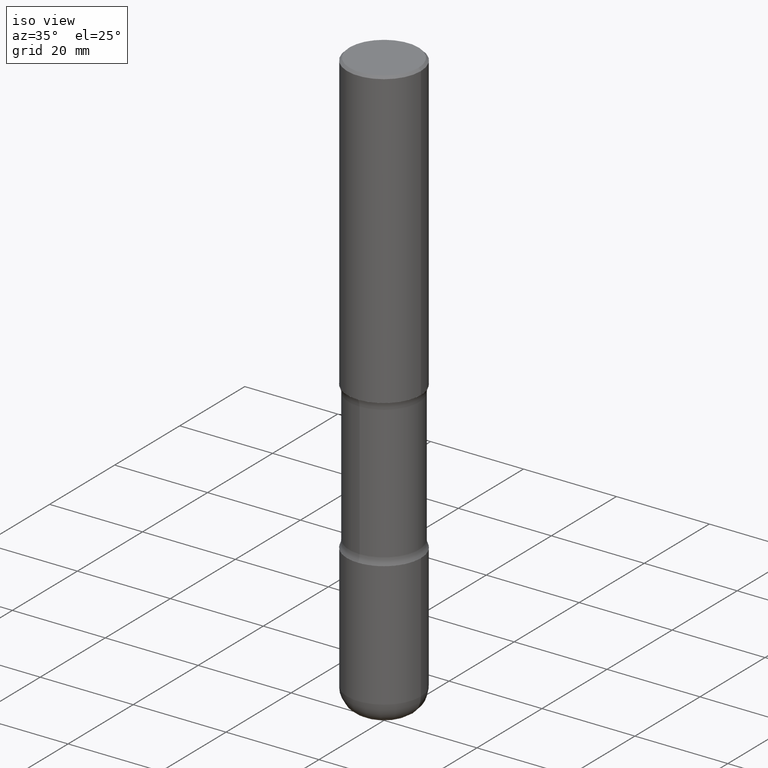
[diagram: clean part render]
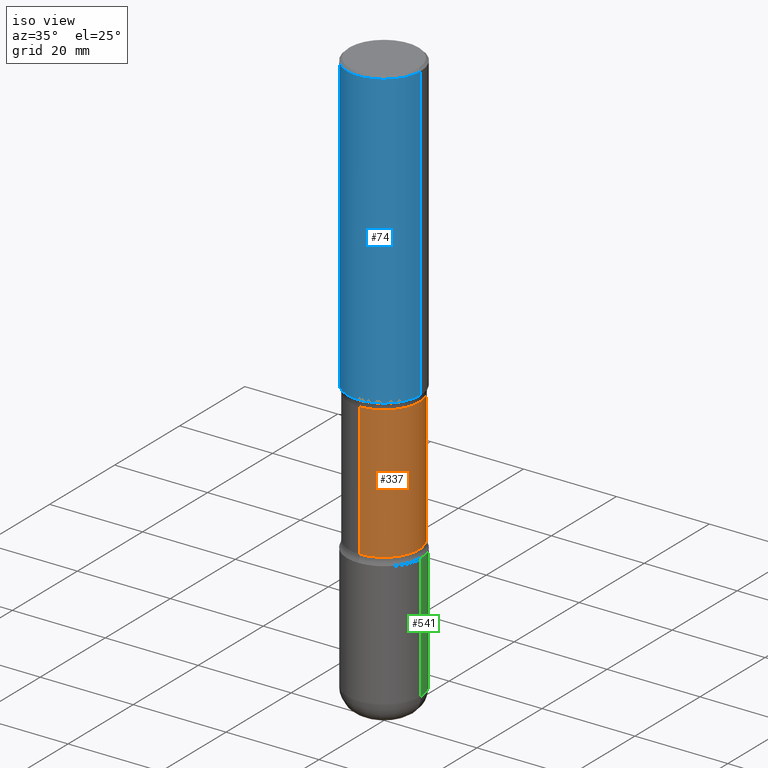
[diagram: same view with three faces highlighted in distinct colors, each labeled with its STEP entity id]
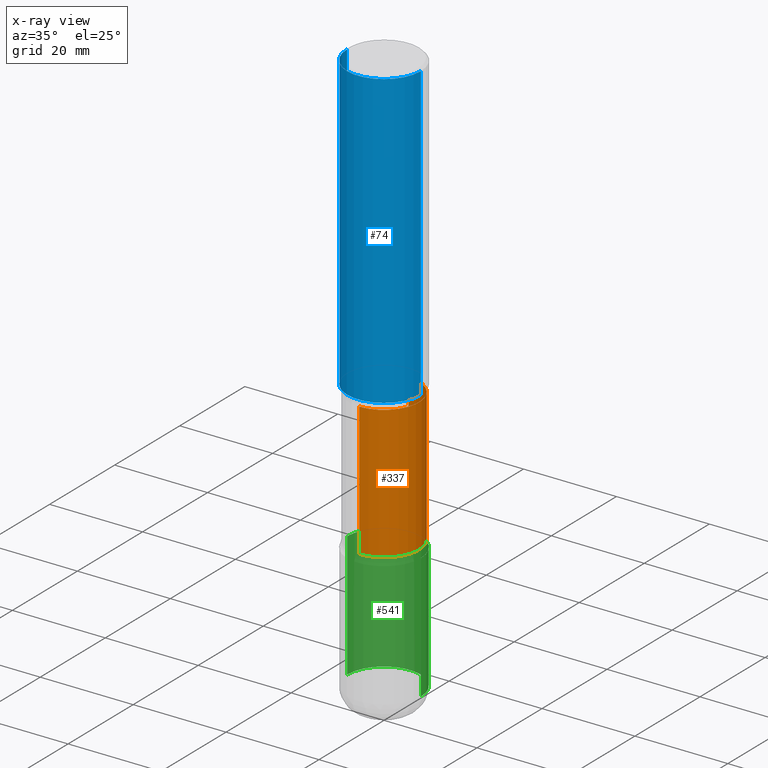
[diagram: x-ray of the same camera — body ghosted, the three highlighted faces saturated]
A machine part, iso view with three faces highlighted in distinct colors.
The next image is the same camera in x-ray (body ghosted, the three faces saturated) — at least one of them is partly hidden behind the body in this view.
Their STEP definitions:

[orange] entity #337 — the highlighted cylindrical surface (partial cylindrical patch) has radius 7.5406 mm, axis along (0, -0, -1).
#33 = EDGE_CURVE ( 'NONE', #494, #222, #183, .T. ) ;
#34 = EDGE_LOOP ( 'NONE', ( #223, #415, #195, #58 ) ) ;
#35 = DIRECTION ( 'NONE',  ( 2.521457479434076939E-29, -3.382661233743975076E-15, -1.000000000000000000 ) ) ;
#46 = CARTESIAN_POINT ( 'NONE',  ( 2.073067044938200360E-15, 0.2968749999999871214, -3.689484635215509289 ) ) ;
#47 = DIRECTION ( 'NONE',  ( 6.982962677686266711E-15, 1.000000000000000000, -3.680805717779217644E-15 ) ) ;
#58 = ORIENTED_EDGE ( 'NONE', *, *, #426, .F. ) ;
#98 = VECTOR ( 'NONE', #370, 39.37007874015748143 ) ;
#107 = DIRECTION ( 'NONE',  ( 2.521457479434076939E-29, -3.382661233743975076E-15, -1.000000000000000000 ) ) ;
#129 = DIRECTION ( 'NONE',  ( 6.982962677686265133E-15, 1.000000000000000000, -3.680805717779217644E-15 ) ) ;
#181 = FACE_OUTER_BOUND ( 'NONE', #34, .T. ) ;
#183 = LINE ( 'NONE', #187, #98 ) ;
#187 = CARTESIAN_POINT ( 'NONE',  ( -2.036710343088299976E-15, -0.2968750000000173195, -4.999999999999999112 ) ) ;
#195 = ORIENTED_EDGE ( 'NONE', *, *, #214, .F. ) ;
#214 = EDGE_CURVE ( 'NONE', #264, #222, #435, .T. ) ;
#216 = CARTESIAN_POINT ( 'NONE',  ( 9.017921104037724021E-29, -1.288835204215942242E-14, -3.689484635215508401 ) ) ;
#219 = CARTESIAN_POINT ( 'NONE',  ( -2.090307983695953569E-15, -0.2968750000000091038, -2.560515364784489822 ) ) ;
#222 = VERTEX_POINT ( 'NONE', #397 ) ;
#223 = ORIENTED_EDGE ( 'NONE', *, *, #363, .T. ) ;
#228 = VECTOR ( 'NONE', #453, 39.37007874015748143 ) ;
#237 = VERTEX_POINT ( 'NONE', #252 ) ;
#252 = CARTESIAN_POINT ( 'NONE',  ( 2.073067044938171961E-15, 0.2968749999999909517, -2.560515364784492043 ) ) ;
#259 = AXIS2_PLACEMENT_3D ( 'NONE', #216, #35, #129 ) ;
#264 = VERTEX_POINT ( 'NONE', #46 ) ;
#333 = AXIS2_PLACEMENT_3D ( 'NONE', #531, #107, #47 ) ;
#337 = ADVANCED_FACE ( 'NONE', ( #181 ), #500, .T. ) ;
#363 = EDGE_CURVE ( 'NONE', #237, #494, #380, .T. ) ;
#370 = DIRECTION ( 'NONE',  ( 2.521457479434076939E-29, -3.382661233743974681E-15, -1.000000000000000000 ) ) ;
#374 = DIRECTION ( 'NONE',  ( 2.521457479434076939E-29, -3.382661233743975076E-15, -1.000000000000000000 ) ) ;
#380 = CIRCLE ( 'NONE', #507, 0.2968750000000000000 ) ;
#397 = CARTESIAN_POINT ( 'NONE',  ( -2.090307983695922804E-15, -0.2968750000000128786, -3.689484635215507069 ) ) ;
#415 = ORIENTED_EDGE ( 'NONE', *, *, #33, .T. ) ;
#426 = EDGE_CURVE ( 'NONE', #237, #264, #532, .T. ) ;
#435 = CIRCLE ( 'NONE', #259, 0.2968750000000000000 ) ;
#453 = DIRECTION ( 'NONE',  ( 2.521457479434076939E-29, -3.382661233743974681E-15, -1.000000000000000000 ) ) ;
#466 = CARTESIAN_POINT ( 'NONE',  ( 2.073067044938233492E-15, 0.2968749999999827360, -5.000000000000000888 ) ) ;
#494 = VERTEX_POINT ( 'NONE', #219 ) ;
#500 = CYLINDRICAL_SURFACE ( 'NONE', #333, 0.2968750000000000000 ) ;
#507 = AXIS2_PLACEMENT_3D ( 'NONE', #523, #374, #528 ) ;
#523 = CARTESIAN_POINT ( 'NONE',  ( 6.171273093058203090E-29, -9.069431456984199816E-15, -2.560515364784490711 ) ) ;
#528 = DIRECTION ( 'NONE',  ( 6.982962677686266711E-15, 1.000000000000000000, -3.680805717779217644E-15 ) ) ;
#531 = CARTESIAN_POINT ( 'NONE',  ( 1.232232987248685960E-28, -1.732138156284176685E-14, -5.000000000000000000 ) ) ;
#532 = LINE ( 'NONE', #466, #228 ) ;

[blue] entity #74 — the highlighted cylindrical surface (partial cylindrical patch) has radius 7.9375 mm, axis along (-0, 0, 1).
#23 = CARTESIAN_POINT ( 'NONE',  ( -0.3125000000000000000, 2.220446049250313081E-15, -1.537167215704658232E-29 ) ) ;
#24 = ORIENTED_EDGE ( 'NONE', *, *, #232, .F. ) ;
#40 = AXIS2_PLACEMENT_3D ( 'NONE', #527, #324, #103 ) ;
#66 = CARTESIAN_POINT ( 'NONE',  ( 6.113672015462840371E-29, -8.728703347107863365E-15, -2.499999999999999556 ) ) ;
#74 = ADVANCED_FACE ( 'NONE', ( #233 ), #327, .T. ) ;
#76 = DIRECTION ( 'NONE',  ( -2.445468806185136597E-29, 3.491481338843145583E-15, 1.000000000000000000 ) ) ;
#83 = CARTESIAN_POINT ( 'NONE',  ( -0.3124999999999998890, 2.112346210000094260E-15, -0.02000000000000006981 ) ) ;
#103 = DIRECTION ( 'NONE',  ( 1.000000000000000000, -6.982962677686266711E-15, 4.876176775795936353E-29 ) ) ;
#113 = VECTOR ( 'NONE', #383, 39.37007874015748143 ) ;
#118 = EDGE_CURVE ( 'NONE', #423, #177, #489, .T. ) ;
#134 = EDGE_CURVE ( 'NONE', #177, #390, #203, .T. ) ;
#177 = VERTEX_POINT ( 'NONE', #478 ) ;
#200 = ORIENTED_EDGE ( 'NONE', *, *, #118, .T. ) ;
#203 = LINE ( 'NONE', #385, #113 ) ;
#218 = VERTEX_POINT ( 'NONE', #83 ) ;
#232 = EDGE_CURVE ( 'NONE', #218, #390, #554, .T. ) ;
#233 = FACE_OUTER_BOUND ( 'NONE', #329, .T. ) ;
#240 = ORIENTED_EDGE ( 'NONE', *, *, #134, .T. ) ;
#248 = CARTESIAN_POINT ( 'NONE',  ( 4.890937612370289799E-31, -6.982962677686315028E-17, -0.02000000000000006981 ) ) ;
#261 = DIRECTION ( 'NONE',  ( -2.445468806185136597E-29, 3.491481338843145583E-15, 1.000000000000000000 ) ) ;
#324 = DIRECTION ( 'NONE',  ( -2.445468806185136597E-29, 3.491481338843145583E-15, 1.000000000000000000 ) ) ;
#327 = CYLINDRICAL_SURFACE ( 'NONE', #40, 0.3125000000000000000 ) ;
#329 = EDGE_LOOP ( 'NONE', ( #560, #200, #240, #24 ) ) ;
#331 = CARTESIAN_POINT ( 'NONE',  ( 0.3124999999999998890, -2.213735251080466123E-15, -0.02000000000000006981 ) ) ;
#368 = VECTOR ( 'NONE', #544, 39.37007874015748143 ) ;
#383 = DIRECTION ( 'NONE',  ( -2.445468806185136877E-29, 3.491481338843145188E-15, 1.000000000000000000 ) ) ;
#385 = CARTESIAN_POINT ( 'NONE',  ( 0.3125000000000000000, -2.182175836776958347E-15, 1.523805242436230075E-29 ) ) ;
#390 = VERTEX_POINT ( 'NONE', #331 ) ;
#423 = VERTEX_POINT ( 'NONE', #493 ) ;
#425 = DIRECTION ( 'NONE',  ( 1.000000000000000000, -6.982962677686266711E-15, 0.000000000000000000 ) ) ;
#447 = AXIS2_PLACEMENT_3D ( 'NONE', #66, #76, #425 ) ;
#448 = AXIS2_PLACEMENT_3D ( 'NONE', #248, #261, #474 ) ;
#474 = DIRECTION ( 'NONE',  ( 1.000000000000000000, -6.982962677686266711E-15, 0.000000000000000000 ) ) ;
#478 = CARTESIAN_POINT ( 'NONE',  ( 0.3125000000000002220, -1.091087918388482329E-14, -2.499999999999999556 ) ) ;
#489 = CIRCLE ( 'NONE', #447, 0.3125000000000002220 ) ;
#493 = CARTESIAN_POINT ( 'NONE',  ( -0.3125000000000002220, -2.178820437692046306E-15, -2.499999999999999556 ) ) ;
#501 = LINE ( 'NONE', #23, #368 ) ;
#527 = CARTESIAN_POINT ( 'NONE',  ( 0.000000000000000000, 0.000000000000000000, 0.000000000000000000 ) ) ;
#529 = EDGE_CURVE ( 'NONE', #423, #218, #501, .T. ) ;
#544 = DIRECTION ( 'NONE',  ( -2.445468806185136877E-29, 3.491481338843145188E-15, 1.000000000000000000 ) ) ;
#554 = CIRCLE ( 'NONE', #448, 0.3124999999999998890 ) ;
#560 = ORIENTED_EDGE ( 'NONE', *, *, #529, .F. ) ;

[green] entity #541 — the highlighted cylindrical surface (partial cylindrical patch) has radius 7.9375 mm, axis along (-0, 0, 1).
#13 = CIRCLE ( 'NONE', #206, 0.3125000000000002220 ) ;
#38 = DIRECTION ( 'NONE',  ( -2.445468806185136877E-29, 3.491481338843145188E-15, 1.000000000000000000 ) ) ;
#53 = AXIS2_PLACEMENT_3D ( 'NONE', #295, #194, #469 ) ;
#90 = VERTEX_POINT ( 'NONE', #151 ) ;
#91 = EDGE_CURVE ( 'NONE', #388, #446, #292, .T. ) ;
#96 = CARTESIAN_POINT ( 'NONE',  ( 0.3125000000000001665, -1.897620107661249005E-14, -4.810000000000000497 ) ) ;
#108 = ORIENTED_EDGE ( 'NONE', *, *, #382, .T. ) ;
#111 = CARTESIAN_POINT ( 'NONE',  ( 9.170508023194261117E-29, -1.309305502066179584E-14, -3.749999999999999556 ) ) ;
#114 = VECTOR ( 'NONE', #38, 39.37007874015748143 ) ;
#139 = DIRECTION ( 'NONE',  ( 1.000000000000000000, -6.982962677686264344E-15, 0.000000000000000000 ) ) ;
#151 = CARTESIAN_POINT ( 'NONE',  ( -0.3125000000000001665, -1.272309408099834754E-14, -3.749999999999999556 ) ) ;
#153 = EDGE_LOOP ( 'NONE', ( #108, #178, #461, #283 ) ) ;
#178 = ORIENTED_EDGE ( 'NONE', *, *, #196, .T. ) ;
#194 = DIRECTION ( 'NONE',  ( -2.445468806185136597E-29, 3.491481338843145583E-15, 1.000000000000000000 ) ) ;
#196 = EDGE_CURVE ( 'NONE', #518, #90, #393, .T. ) ;
#197 = FACE_OUTER_BOUND ( 'NONE', #153, .T. ) ;
#206 = AXIS2_PLACEMENT_3D ( 'NONE', #520, #378, #139 ) ;
#241 = CYLINDRICAL_SURFACE ( 'NONE', #53, 0.3125000000000001665 ) ;
#247 = DIRECTION ( 'NONE',  ( -2.445468806185136597E-29, 3.491481338843145583E-15, 1.000000000000000000 ) ) ;
#283 = ORIENTED_EDGE ( 'NONE', *, *, #91, .F. ) ;
#292 = LINE ( 'NONE', #349, #371 ) ;
#295 = CARTESIAN_POINT ( 'NONE',  ( 0.000000000000000000, 0.000000000000000000, 0.000000000000000000 ) ) ;
#304 = CIRCLE ( 'NONE', #314, 0.3125000000000001665 ) ;
#314 = AXIS2_PLACEMENT_3D ( 'NONE', #111, #247, #343 ) ;
#340 = CARTESIAN_POINT ( 'NONE',  ( -0.3125000000000001665, -1.457357919058521389E-14, -4.810000000000000497 ) ) ;
#343 = DIRECTION ( 'NONE',  ( 1.000000000000000000, -6.982962677686265133E-15, 0.000000000000000000 ) ) ;
#349 = CARTESIAN_POINT ( 'NONE',  ( 0.3125000000000001665, -2.182175836776959530E-15, 1.523805242436230636E-29 ) ) ;
#371 = VECTOR ( 'NONE', #411, 39.37007874015748143 ) ;
#378 = DIRECTION ( 'NONE',  ( -2.445468806185136597E-29, 3.491481338843145583E-15, 1.000000000000000000 ) ) ;
#382 = EDGE_CURVE ( 'NONE', #388, #518, #13, .T. ) ;
#388 = VERTEX_POINT ( 'NONE', #96 ) ;
#393 = LINE ( 'NONE', #444, #114 ) ;
#411 = DIRECTION ( 'NONE',  ( -2.445468806185136877E-29, 3.491481338843145188E-15, 1.000000000000000000 ) ) ;
#419 = CARTESIAN_POINT ( 'NONE',  ( 0.3125000000000001665, -1.527523085743875418E-14, -3.749999999999999556 ) ) ;
#444 = CARTESIAN_POINT ( 'NONE',  ( -0.3125000000000001665, 2.220446049250314264E-15, -1.537167215704658792E-29 ) ) ;
#446 = VERTEX_POINT ( 'NONE', #419 ) ;
#461 = ORIENTED_EDGE ( 'NONE', *, *, #535, .F. ) ;
#469 = DIRECTION ( 'NONE',  ( 1.000000000000000000, -6.982962677686266711E-15, 4.876176775795935232E-29 ) ) ;
#518 = VERTEX_POINT ( 'NONE', #340 ) ;
#520 = CARTESIAN_POINT ( 'NONE',  ( 1.176270495775050811E-28, -1.679402523983553013E-14, -4.810000000000000497 ) ) ;
#535 = EDGE_CURVE ( 'NONE', #446, #90, #304, .T. ) ;
#541 = ADVANCED_FACE ( 'NONE', ( #197 ), #241, .T. ) ;